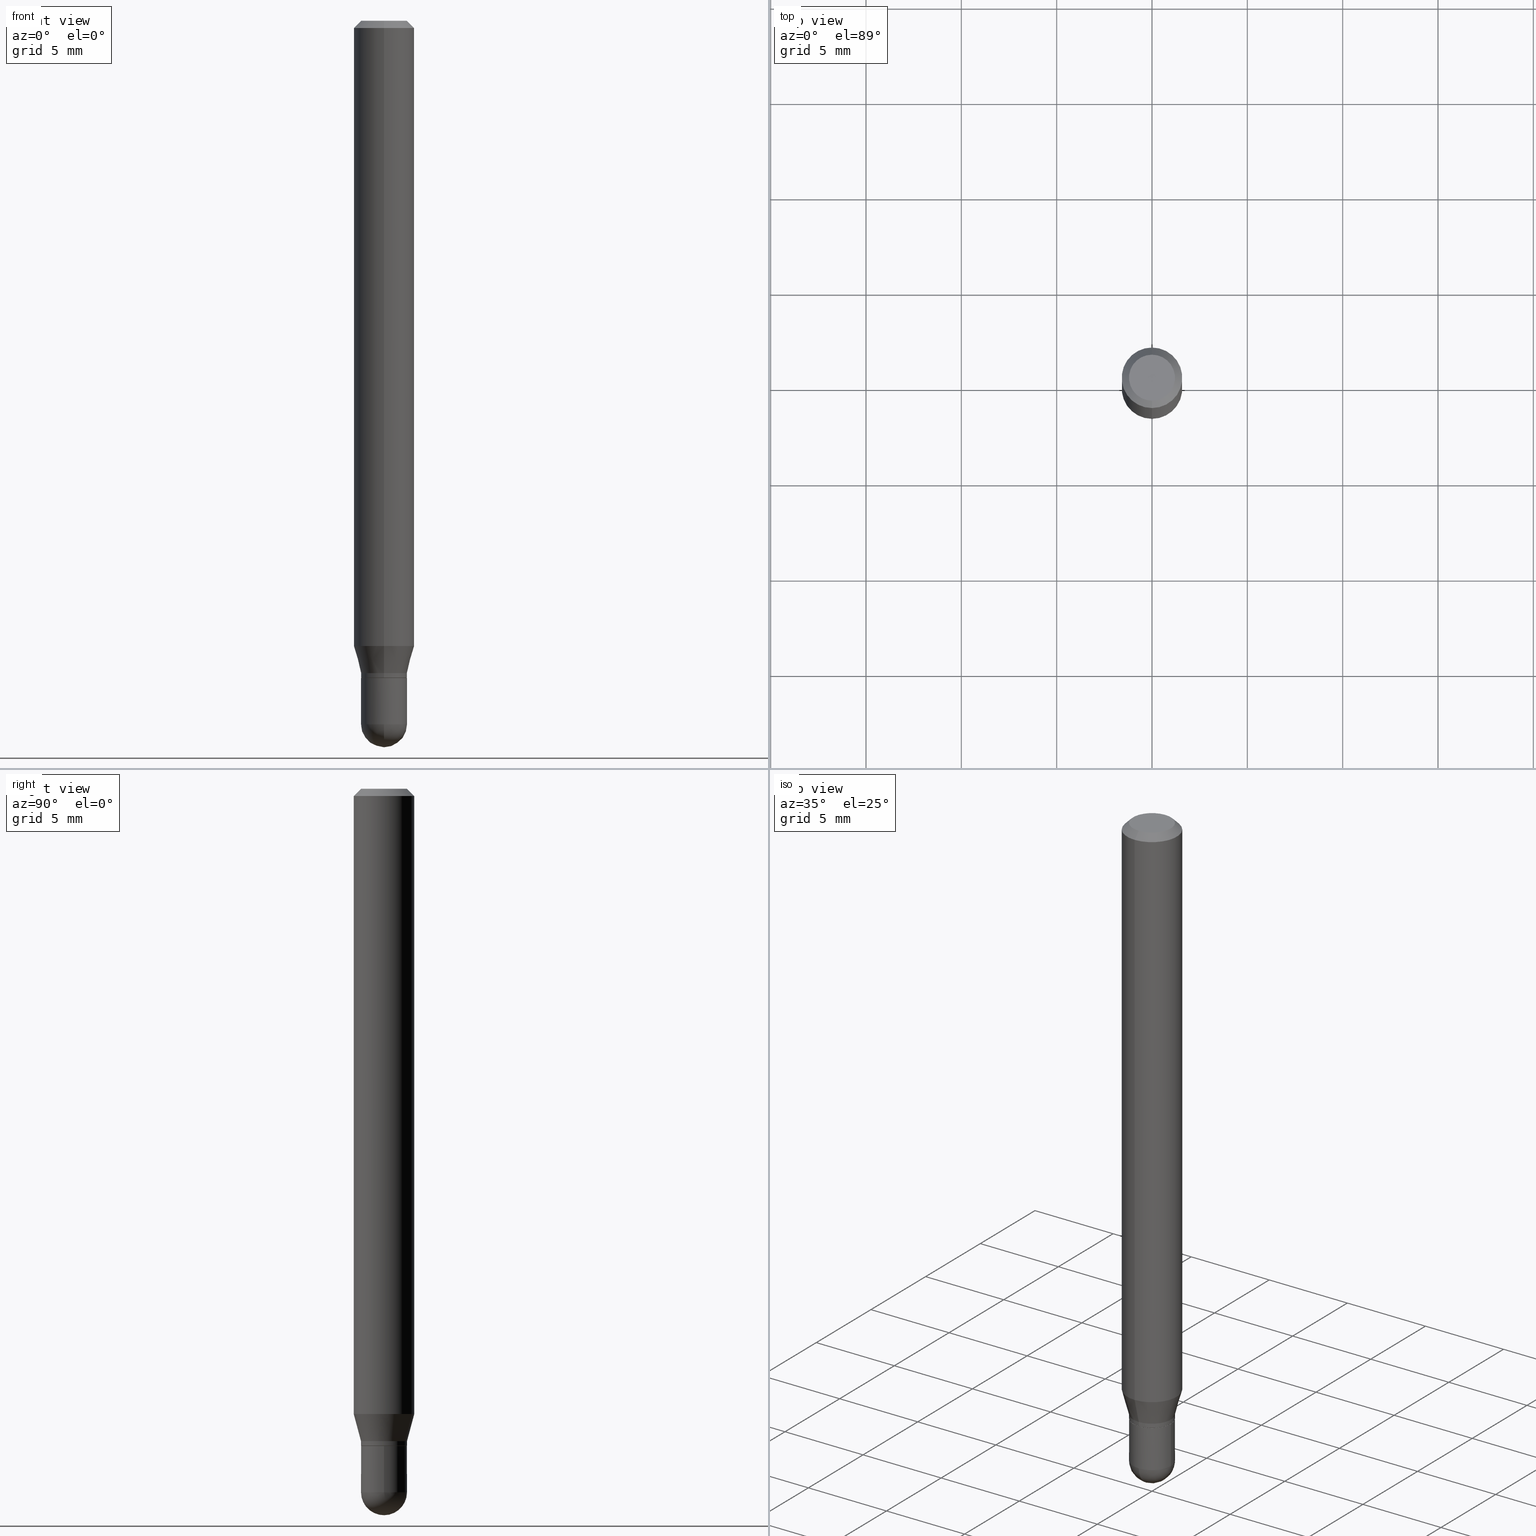
[diagram: canonical four-view strip — front | top / right | iso, engineering-drawing reading convention]
A machine part, canonical four-view strip (front | top / right | iso — engineering-drawing reading convention). The complete STEP part file that produces these views, byte-faithful:
ISO-10303-21;
HEADER;
FILE_DESCRIPTION (( 'STEP AP203' ),
    '1' );
FILE_NAME ('02566.STEP',
    '2024-03-07T20:28:25',
    ( '' ),
    ( '' ),
    'SwSTEP 2.0',
    'SolidWorks 2023',
    '' );
FILE_SCHEMA (( 'CONFIG_CONTROL_DESIGN' ));
ENDSEC;

DATA;
#1 = ORIENTED_EDGE ( 'NONE', *, *, #66, .T. ) ;
#2 = CYLINDRICAL_SURFACE ( 'NONE', #247, 0.06250000000000000000 ) ;
#3 = ORIENTED_EDGE ( 'NONE', *, *, #51, .F. ) ;
#4 = ADVANCED_FACE ( 'NONE', ( #413 ), #451, .T. ) ;
#5 = LOCAL_TIME ( 15, 28, 25.00000000000000000, #123 ) ;
#6 = EDGE_LOOP ( 'NONE', ( #399, #208, #403, #449, #173 ) ) ;
#7 = ORIENTED_EDGE ( 'NONE', *, *, #184, .T. ) ;
#8 = ORIENTED_EDGE ( 'NONE', *, *, #219, .F. ) ;
#9 = VERTEX_POINT ( 'NONE', #294 ) ;
#10 = EDGE_CURVE ( 'NONE', #50, #482, #465, .T. ) ;
#11 = FACE_OUTER_BOUND ( 'NONE', #364, .T. ) ;
#12 = DESIGN_CONTEXT ( 'detailed design', #38, 'design' ) ;
#13 = ORIENTED_EDGE ( 'NONE', *, *, #66, .F. ) ;
#14 = ORIENTED_EDGE ( 'NONE', *, *, #58, .F. ) ;
#15 = VECTOR ( 'NONE', #73, 39.37007874015748854 ) ;
#16 = CARTESIAN_POINT ( 'NONE',  ( 3.552043440983912297E-29, -5.071376644669670605E-15, -1.452500000000000346 ) ) ;
#17 = CARTESIAN_POINT ( 'NONE',  ( -4.364351673553598192E-16, -0.06250000000000446865, -1.291019237886467108 ) ) ;
#18 = FACE_OUTER_BOUND ( 'NONE', #49, .T. ) ;
#19 = CARTESIAN_POINT ( 'NONE',  ( -4.364351673553912750E-16, -0.06250000000000005551, -0.01500000000000011047 ) ) ;
#20 = VECTOR ( 'NONE', #124, 39.37007874015748143 ) ;
#21 = CARTESIAN_POINT ( 'NONE',  ( 3.294078296903620621E-29, -4.702979802570672656E-15, -1.347000000000000419 ) ) ;
#22 = CARTESIAN_POINT ( 'NONE',  ( -3.773273898774340269E-16, -0.04749999999999999362, -1.623047973916829079E-16 ) ) ;
#23 = CYLINDRICAL_SURFACE ( 'NONE', #145, 0.06250000000000000000 ) ;
#24 = DIRECTION ( 'NONE',  ( -2.445492425318203603E-29, 3.491447514900276167E-15, 1.000000000000000000 ) ) ;
#25 = PERSON_AND_ORGANIZATION ( #285, #100 ) ;
#26 = ADVANCED_FACE ( 'NONE', ( #59 ), #56, .T. ) ;
#27 = CYLINDRICAL_SURFACE ( 'NONE', #474, 0.04750000000000000749 ) ;
#28 = DIRECTION ( 'NONE',  ( -2.445492425318203603E-29, 3.491447514900276167E-15, 1.000000000000000000 ) ) ;
#29 = AXIS2_PLACEMENT_3D ( 'NONE', #322, #354, #164 ) ;
#30 = CARTESIAN_POINT ( 'NONE',  ( 0.04750000000000000749, -5.236349137930007031E-15, -1.452500000000000346 ) ) ;
#31 = APPROVAL_PERSON_ORGANIZATION ( #441, #177, #126 ) ;
#32 = APPROVAL_STATUS ( 'not_yet_approved' ) ;
#33 = ADVANCED_FACE ( 'NONE', ( #147 ), #366, .T. ) ;
#34 = PERSON_AND_ORGANIZATION ( #285, #100 ) ;
#35 = DIRECTION ( 'NONE',  ( 1.000000000000000000, -6.982962677686265922E-15, 4.883557194083112901E-29 ) ) ;
#36 = AXIS2_PLACEMENT_3D ( 'NONE', #385, #303, #103 ) ;
#37 = CC_DESIGN_APPROVAL ( #415, ( #300 ) ) ;
#38 = APPLICATION_CONTEXT ( 'configuration controlled 3d designs of mechanical parts and assemblies' ) ;
#39 = DIRECTION ( 'NONE',  ( -6.982962677686265922E-15, -1.000000000000000000, 3.491447514900276167E-15 ) ) ;
#40 = ORIENTED_EDGE ( 'NONE', *, *, #432, .T. ) ;
#41 = ADVANCED_BREP_SHAPE_REPRESENTATION ( '02566', ( #122, #118, #200 ), #183 ) ;
#42 = EDGE_CURVE ( 'NONE', #47, #335, #152, .T. ) ;
#43 = ORIENTED_EDGE ( 'NONE', *, *, #481, .T. ) ;
#44 = DIRECTION ( 'NONE',  ( 1.000000000000000000, -6.982962677686261977E-15, 0.000000000000000000 ) ) ;
#45 = ORIENTED_EDGE ( 'NONE', *, *, #402, .T. ) ;
#46 = AXIS2_PLACEMENT_3D ( 'NONE', #115, #194, #39 ) ;
#47 = VERTEX_POINT ( 'NONE', #17 ) ;
#48 = DIRECTION ( 'NONE',  ( 1.000000000000000000, -7.105427357601001070E-15, 4.926315508542082329E-29 ) ) ;
#49 = EDGE_LOOP ( 'NONE', ( #241, #45, #365, #295 ) ) ;
#50 = VERTEX_POINT ( 'NONE', #22 ) ;
#51 = EDGE_CURVE ( 'NONE', #134, #324, #509, .T. ) ;
#52 = ORIENTED_EDGE ( 'NONE', *, *, #51, .T. ) ;
#53 = ORIENTED_EDGE ( 'NONE', *, *, #347, .F. ) ;
#54 = AXIS2_PLACEMENT_3D ( 'NONE', #16, #496, #339 ) ;
#55 = DIRECTION ( 'NONE',  ( -2.445492425318203603E-29, 3.491447514900276167E-15, 1.000000000000000000 ) ) ;
#56 = CYLINDRICAL_SURFACE ( 'NONE', #144, 0.04749999999999991729 ) ;
#57 = DIRECTION ( 'NONE',  ( -6.982962677686265922E-15, -1.000000000000000000, 3.483106191921935554E-15 ) ) ;
#58 = EDGE_CURVE ( 'NONE', #324, #335, #384, .T. ) ;
#59 = FACE_OUTER_BOUND ( 'NONE', #483, .T. ) ;
#60 = DIRECTION ( 'NONE',  ( -2.445492425318203883E-29, 3.491447514900276167E-15, 1.000000000000000000 ) ) ;
#61 = LINE ( 'NONE', #221, #89 ) ;
#62 = AXIS2_PLACEMENT_3D ( 'NONE', #310, #186, #149 ) ;
#63 = AXIS2_PLACEMENT_3D ( 'NONE', #418, #492, #351 ) ;
#64 = LINE ( 'NONE', #105, #312 ) ;
#65 = CARTESIAN_POINT ( 'NONE',  ( 3.668238637977385892E-31, -5.237171272350528635E-17, -0.01500000000000032904 ) ) ;
#66 = EDGE_CURVE ( 'NONE', #335, #47, #298, .T. ) ;
#67 = DIRECTION ( 'NONE',  ( 6.982962677686265922E-15, 1.000000000000000000, -3.483106191921935554E-15 ) ) ;
#68 = DIRECTION ( 'NONE',  ( -6.982962677686265922E-15, -1.000000000000000000, 5.751258934030037627E-15 ) ) ;
#69 = DIRECTION ( 'NONE',  ( 0.000000000000000000, 0.000000000000000000, 1.000000000000000000 ) ) ;
#70 = CARTESIAN_POINT ( 'NONE',  ( -3.316907271900641323E-16, -0.04750000000000462186, -1.347000000000000197 ) ) ;
#71 = CONICAL_SURFACE ( 'NONE', #231, 0.06250000000000000000, 0.7853981633974483900 ) ;
#72 = AXIS2_PLACEMENT_3D ( 'NONE', #466, #269, #57 ) ;
#73 = DIRECTION ( 'NONE',  ( -1.807323732225333689E-15, -0.2588190451025186856, 0.9659258262890687563 ) ) ;
#74 = EDGE_CURVE ( 'NONE', #335, #243, #388, .T. ) ;
#75 = DATE_TIME_ROLE ( 'classification_date' ) ;
#76 = DIRECTION ( 'NONE',  ( -2.445492425318203883E-29, 3.491447514900276167E-15, 1.000000000000000000 ) ) ;
#77 = CALENDAR_DATE ( 2024, 7, 3 ) ;
#78 = PERSON_AND_ORGANIZATION ( #285, #100 ) ;
#79 = LINE ( 'NONE', #70, #15 ) ;
#80 = DIRECTION ( 'NONE',  ( -6.982962677686266711E-15, -1.000000000000000000, 5.812442539711199378E-15 ) ) ;
#81 = ORIENTED_EDGE ( 'NONE', *, *, #207, .T. ) ;
#82 = EDGE_CURVE ( 'NONE', #92, #9, #256, .T. ) ;
#83 = CARTESIAN_POINT ( 'NONE',  ( 0.000000000000000000, 0.000000000000000000, 0.000000000000000000 ) ) ;
#84 = ORIENTED_EDGE ( 'NONE', *, *, #432, .F. ) ;
#85 = FACE_OUTER_BOUND ( 'NONE', #204, .T. ) ;
#86 = ORIENTED_EDGE ( 'NONE', *, *, #58, .T. ) ;
#87 = ORIENTED_EDGE ( 'NONE', *, *, #362, .F. ) ;
#88 = ADVANCED_FACE ( 'NONE', ( #379 ), #71, .T. ) ;
#89 = VECTOR ( 'NONE', #499, 39.37007874015748143 ) ;
#90 = ORIENTED_EDGE ( 'NONE', *, *, #42, .F. ) ;
#91 = CIRCLE ( 'NONE', #291, 0.04750000000000000749 ) ;
#92 = VERTEX_POINT ( 'NONE', #419 ) ;
#93 = CARTESIAN_POINT ( 'NONE',  ( 3.357314426466801272E-16, 0.04699999999999526085, -1.357000000000000206 ) ) ;
#94 = EDGE_LOOP ( 'NONE', ( #14, #43, #40, #13 ) ) ;
#95 = DIRECTION ( 'NONE',  ( 1.000000000000000000, -6.982962677686265922E-15, 4.883557194083112901E-29 ) ) ;
#96 = ORIENTED_EDGE ( 'NONE', *, *, #476, .T. ) ;
#97 = DIRECTION ( 'NONE',  ( 1.000000000000000000, -6.982962677686260400E-15, 0.000000000000000000 ) ) ;
#98 = ORIENTED_EDGE ( 'NONE', *, *, #459, .F. ) ;
#99 = CLOSED_SHELL ( 'NONE', ( #440, #33, #355, #325, #229, #128, #195, #88, #102, #133, #212, #26 ) ) ;
#100 = ORGANIZATION ( 'UNSPECIFIED', 'UNSPECIFIED', '' ) ;
#101 = CC_DESIGN_SECURITY_CLASSIFICATION ( #488, ( #300 ) ) ;
#102 = ADVANCED_FACE ( 'NONE', ( #346 ), #421, .F. ) ;
#103 = DIRECTION ( 'NONE',  ( -6.982962677686265922E-15, -1.000000000000000000, 0.000000000000000000 ) ) ;
#104 = DIRECTION ( 'NONE',  ( -2.445492425318203883E-29, 3.491447514900276167E-15, 1.000000000000000000 ) ) ;
#105 = CARTESIAN_POINT ( 'NONE',  ( -3.281992458512213224E-16, -0.04700000000000473244, -1.356999999999999762 ) ) ;
#106 = CARTESIAN_POINT ( 'NONE',  ( 0.000000000000000000, 0.000000000000000000, 0.000000000000000000 ) ) ;
#107 = DIRECTION ( 'NONE',  ( 1.000000000000000000, -6.982962677686261977E-15, 0.000000000000000000 ) ) ;
#108 = EDGE_CURVE ( 'NONE', #130, #243, #442, .T. ) ;
#109 = AXIS2_PLACEMENT_3D ( 'NONE', #479, #48, #168 ) ;
#110 = CONICAL_SURFACE ( 'NONE', #376, 0.06250000000000000000, 0.7853981633974483900 ) ;
#111 = APPROVAL_ROLE ( '' ) ;
#112 = FACE_OUTER_BOUND ( 'NONE', #6, .T. ) ;
#113 = CARTESIAN_POINT ( 'NONE',  ( 3.157177767191435444E-29, -4.507525909807155110E-15, -1.291019237886467330 ) ) ;
#114 = APPROVAL_DATE_TIME ( #506, #415 ) ;
#115 = CARTESIAN_POINT ( 'NONE',  ( 0.000000000000000000, 0.000000000000000000, 0.000000000000000000 ) ) ;
#116 = DIRECTION ( 'NONE',  ( -6.982962677686265922E-15, -1.000000000000000000, 3.491447514900276167E-15 ) ) ;
#117 = LENGTH_MEASURE_WITH_UNIT ( LENGTH_MEASURE( 0.02539999999999999897 ), #125 );
#118 = MANIFOLD_SOLID_BREP ( 'Body-Move/Copy2[2]', #99 ) ;
#119 = PERSON_AND_ORGANIZATION ( #285, #100 ) ;
#120 = CIRCLE ( 'NONE', #405, 0.04749999999999999362 ) ;
#121 = LINE ( 'NONE', #439, #343 ) ;
#122 = MANIFOLD_SOLID_BREP ( 'Body-Move/Copy2[1]', #390 ) ;
#123 = COORDINATED_UNIVERSAL_TIME_OFFSET ( 5, 0, .BEHIND. ) ;
#124 = DIRECTION ( 'NONE',  ( -4.851104656540964275E-15, -0.7071067811865500152, -0.7071067811865450192 ) ) ;
#125 =( LENGTH_UNIT ( ) NAMED_UNIT ( * ) SI_UNIT ( $, .METRE. ) );
#126 = APPROVAL_ROLE ( '' ) ;
#127 = ORIENTED_EDGE ( 'NONE', *, *, #165, .F. ) ;
#128 = ADVANCED_FACE ( 'NONE', ( #304 ), #341, .T. ) ;
#129 = AXIS2_PLACEMENT_3D ( 'NONE', #275, #273, #80 ) ;
#130 = VERTEX_POINT ( 'NONE', #19 ) ;
#131 = CARTESIAN_POINT ( 'NONE',  ( 4.364351673553919652E-16, 0.06249999999999995143, -0.01500000000000054588 ) ) ;
#132 = ORIENTED_EDGE ( 'NONE', *, *, #470, .F. ) ;
#133 = ADVANCED_FACE ( 'NONE', ( #181 ), #344, .F. ) ;
#134 = VERTEX_POINT ( 'NONE', #274 ) ;
#135 = VERTEX_POINT ( 'NONE', #497 ) ;
#136 = EDGE_LOOP ( 'NONE', ( #332, #245, #288, #246 ) ) ;
#137 = CIRCLE ( 'NONE', #425, 0.04750000000000000749 ) ;
#138 = CARTESIAN_POINT ( 'NONE',  ( 3.547981401110308940E-29, -5.077193716965619798E-15, -1.452500000000000124 ) ) ;
#139 = DIRECTION ( 'NONE',  ( -2.445492425318203603E-29, 3.491447514900276167E-15, 1.000000000000000000 ) ) ;
#140 = ORIENTED_EDGE ( 'NONE', *, *, #42, .T. ) ;
#141 = EDGE_CURVE ( 'NONE', #9, #134, #61, .T. ) ;
#142 = CYLINDRICAL_SURFACE ( 'NONE', #397, 0.04750000000000000749 ) ;
#143 = DIRECTION ( 'NONE',  ( -2.445492425318203603E-29, 3.491447514900276167E-15, 1.000000000000000000 ) ) ;
#144 = AXIS2_PLACEMENT_3D ( 'NONE', #106, #349, #386 ) ;
#145 = AXIS2_PLACEMENT_3D ( 'NONE', #150, #215, #462 ) ;
#146 = CARTESIAN_POINT ( 'NONE',  ( 3.552043440983912297E-29, -5.071376644669670605E-15, -1.452500000000000346 ) ) ;
#147 = FACE_OUTER_BOUND ( 'NONE', #136, .T. ) ;
#148 = CARTESIAN_POINT ( 'NONE',  ( 0.000000000000000000, 0.000000000000000000, 0.000000000000000000 ) ) ;
#149 = DIRECTION ( 'NONE',  ( -6.982962677686265922E-15, -1.000000000000000000, 5.751258934030037627E-15 ) ) ;
#150 = CARTESIAN_POINT ( 'NONE',  ( 0.000000000000000000, 0.000000000000000000, 0.000000000000000000 ) ) ;
#151 = DIRECTION ( 'NONE',  ( -6.982962677686265922E-15, -1.000000000000000000, 4.370956789862821150E-15 ) ) ;
#152 = CIRCLE ( 'NONE', #238, 0.06250000000000000000 ) ;
#153 = DATE_TIME_ROLE ( 'creation_date' ) ;
#154 = CARTESIAN_POINT ( 'NONE',  ( -4.364351673553916201E-16, -0.06250000000000000000, 2.182154696812672604E-16 ) ) ;
#155 = CARTESIAN_POINT ( 'NONE',  ( 3.318533221156802461E-29, -4.737894277719674668E-15, -1.356999999999999984 ) ) ;
#156 = APPLICATION_PROTOCOL_DEFINITION ( 'international standard', 'config_control_design', 1994, #38 ) ;
#157 = DIRECTION ( 'NONE',  ( -6.982962677686265922E-15, -1.000000000000000000, 5.751258934030012383E-15 ) ) ;
#158 = CC_DESIGN_DATE_AND_TIME_ASSIGNMENT ( #396, #75, ( #488 ) ) ;
#159 = PERSON_AND_ORGANIZATION_ROLE ( 'design_supplier' ) ;
#160 = VERTEX_POINT ( 'NONE', #306 ) ;
#161 = PERSON_AND_ORGANIZATION_ROLE ( 'creator' ) ;
#162 = CONICAL_SURFACE ( 'NONE', #267, 0.04699999999999999317, 0.7853981633974739252 ) ;
#163 = CARTESIAN_POINT ( 'NONE',  ( -3.316907271900626039E-16, -0.04750000000000514228, -1.452500000000000124 ) ) ;
#164 = DIRECTION ( 'NONE',  ( -6.982962677686265922E-15, -1.000000000000000000, 5.751258934030037627E-15 ) ) ;
#165 = EDGE_CURVE ( 'NONE', #188, #92, #265, .T. ) ;
#166 = COORDINATED_UNIVERSAL_TIME_OFFSET ( 5, 0, .BEHIND. ) ;
#167 = LOCAL_TIME ( 15, 28, 25.00000000000000000, #319 ) ;
#168 = DIRECTION ( 'NONE',  ( 7.105427357601001070E-15, 1.000000000000000000, 0.000000000000000000 ) ) ;
#169 = VERTEX_POINT ( 'NONE', #163 ) ;
#170 = ORIENTED_EDGE ( 'NONE', *, *, #476, .F. ) ;
#171 = CC_DESIGN_PERSON_AND_ORGANIZATION_ASSIGNMENT ( #119, #277, ( #488 ) ) ;
#172 = DIMENSIONAL_EXPONENTS ( 1.000000000000000000, 0.000000000000000000, 0.000000000000000000, 0.000000000000000000, 0.000000000000000000, 0.000000000000000000, 0.000000000000000000 ) ;
#173 = ORIENTED_EDGE ( 'NONE', *, *, #184, .F. ) ;
#174 = ORIENTED_EDGE ( 'NONE', *, *, #141, .T. ) ;
#175 = EDGE_LOOP ( 'NONE', ( #52, #86, #90, #84 ) ) ;
#176 = EDGE_LOOP ( 'NONE', ( #363, #330, #206, #98, #443 ) ) ;
#177 = APPROVAL ( #437, 'UNSPECIFIED' ) ;
#178 = FACE_OUTER_BOUND ( 'NONE', #176, .T. ) ;
#179 = DIRECTION ( 'NONE',  ( 2.445492425318203603E-29, -3.491447514900276167E-15, -1.000000000000000000 ) ) ;
#180 = DIRECTION ( 'NONE',  ( -6.982962677686265922E-15, -1.000000000000000000, 5.751258934030037627E-15 ) ) ;
#181 = FACE_OUTER_BOUND ( 'NONE', #401, .T. ) ;
#182 = CIRCLE ( 'NONE', #109, 0.04750000000000012546 ) ;
#183 =( GEOMETRIC_REPRESENTATION_CONTEXT ( 3 ) GLOBAL_UNCERTAINTY_ASSIGNED_CONTEXT ( ( #254 ) ) GLOBAL_UNIT_ASSIGNED_CONTEXT ( ( #281, #201, #359 ) ) REPRESENTATION_CONTEXT ( 'NONE', 'WORKASPACE' ) );
#184 = EDGE_CURVE ( 'NONE', #135, #297, #120, .T. ) ;
#185 = DIRECTION ( 'NONE',  ( -2.445468806185136877E-29, 3.491481338843145188E-15, 1.000000000000000000 ) ) ;
#186 = DIRECTION ( 'NONE',  ( -2.445492425318203603E-29, 3.491447514900276167E-15, 1.000000000000000000 ) ) ;
#187 = CARTESIAN_POINT ( 'NONE',  ( 4.440892098500942692E-16, 0.06249999999999551747, -1.291019237886467552 ) ) ;
#188 = VERTEX_POINT ( 'NONE', #93 ) ;
#189 = DIRECTION ( 'NONE',  ( 5.024295867788190974E-15, 0.7071067811865681119, 0.7071067811865270336 ) ) ;
#190 = APPROVAL_ROLE ( '' ) ;
#191 = LINE ( 'NONE', #260, #239 ) ;
#192 = DIRECTION ( 'NONE',  ( 6.982962677686265922E-15, 1.000000000000000000, -3.483106191921935554E-15 ) ) ;
#193 = CIRCLE ( 'NONE', #361, 0.04749999999999999362 ) ;
#194 = DIRECTION ( 'NONE',  ( -2.445492425318203603E-29, 3.491447514900276167E-15, 1.000000000000000000 ) ) ;
#195 = ADVANCED_FACE ( 'NONE', ( #11 ), #2, .T. ) ;
#196 = CALENDAR_DATE ( 2024, 7, 3 ) ;
#197 = ORIENTED_EDGE ( 'NONE', *, *, #320, .F. ) ;
#198 = CARTESIAN_POINT ( 'NONE',  ( -0.04750000000000000749, -4.567150611253862815E-15, -1.452500000000000346 ) ) ;
#199 = EDGE_CURVE ( 'NONE', #160, #455, #182, .T. ) ;
#200 = AXIS2_PLACEMENT_3D ( 'NONE', #317, #69, #226 ) ;
#201 =( NAMED_UNIT ( * ) PLANE_ANGLE_UNIT ( ) SI_UNIT ( $, .RADIAN. ) );
#202 = APPROVAL_PERSON_ORGANIZATION ( #471, #415, #190 ) ;
#203 = ORIENTED_EDGE ( 'NONE', *, *, #279, .F. ) ;
#204 = EDGE_LOOP ( 'NONE', ( #127, #338, #448, #255 ) ) ;
#205 = DATE_AND_TIME ( #77, #223 ) ;
#206 = ORIENTED_EDGE ( 'NONE', *, *, #235, .F. ) ;
#207 = EDGE_CURVE ( 'NONE', #482, #243, #329, .T. ) ;
#208 = ORIENTED_EDGE ( 'NONE', *, *, #362, .T. ) ;
#209 = ORIENTED_EDGE ( 'NONE', *, *, #378, .T. ) ;
#210 = VERTEX_POINT ( 'NONE', #446 ) ;
#211 = ORIENTED_EDGE ( 'NONE', *, *, #279, .T. ) ;
#212 = ADVANCED_FACE ( 'NONE', ( #85 ), #162, .T. ) ;
#213 = VECTOR ( 'NONE', #60, 39.37007874015748143 ) ;
#214 = CC_DESIGN_APPROVAL ( #177, ( #488 ) ) ;
#215 = DIRECTION ( 'NONE',  ( -2.445492425318203603E-29, 3.491447514900276167E-15, 1.000000000000000000 ) ) ;
#216 = DIRECTION ( 'NONE',  ( -6.982962677686265922E-15, -1.000000000000000000, 4.370956789862821150E-15 ) ) ;
#217 = CARTESIAN_POINT ( 'NONE',  ( 3.318501169993230375E-29, -4.737940176810148435E-15, -1.356999999999999984 ) ) ;
#218 = DIRECTION ( 'NONE',  ( -2.445492425318203603E-29, 3.491447514900276167E-15, 1.000000000000000000 ) ) ;
#219 = EDGE_CURVE ( 'NONE', #210, #188, #478, .T. ) ;
#220 = LINE ( 'NONE', #154, #283 ) ;
#221 = CARTESIAN_POINT ( 'NONE',  ( -3.316907271900970672E-16, -0.04749999999999991729, 1.658437569577628369E-16 ) ) ;
#222 = CIRCLE ( 'NONE', #54, 0.04750000000000000749 ) ;
#223 = LOCAL_TIME ( 15, 28, 25.00000000000000000, #166 ) ;
#224 = DIRECTION ( 'NONE',  ( -2.445468806185136597E-29, 3.491481338843145583E-15, 1.000000000000000000 ) ) ;
#225 = CARTESIAN_POINT ( 'NONE',  ( 3.339550858072801710E-16, 0.04699999999999526085, -1.357000000000000206 ) ) ;
#226 = DIRECTION ( 'NONE',  ( 1.000000000000000000, 0.000000000000000000, 0.000000000000000000 ) ) ;
#227 = CARTESIAN_POINT ( 'NONE',  ( 4.440892098500943678E-16, 0.06249999999999995837, -0.01500000000000054588 ) ) ;
#228 = DIRECTION ( 'NONE',  ( 2.445492425318203323E-29, -3.491447514900276167E-15, -1.000000000000000000 ) ) ;
#229 = ADVANCED_FACE ( 'NONE', ( #498 ), #353, .T. ) ;
#230 = CARTESIAN_POINT ( 'NONE',  ( 3.552043440983912297E-29, -5.071376644669670605E-15, -1.452500000000000346 ) ) ;
#231 = AXIS2_PLACEMENT_3D ( 'NONE', #426, #179, #192 ) ;
#232 = CC_DESIGN_APPROVAL ( #271, ( #340 ) ) ;
#233 = DIRECTION ( 'NONE',  ( -2.445468806185136877E-29, 3.491481338843145188E-15, 1.000000000000000000 ) ) ;
#234 = LINE ( 'NONE', #472, #20 ) ;
#235 = EDGE_CURVE ( 'NONE', #297, #135, #406, .T. ) ;
#236 = CALENDAR_DATE ( 2024, 7, 3 ) ;
#237 = SPHERICAL_SURFACE ( 'NONE', #327, 0.04750000000000012546 ) ;
#238 = AXIS2_PLACEMENT_3D ( 'NONE', #113, #143, #216 ) ;
#239 = VECTOR ( 'NONE', #185, 39.37007874015748143 ) ;
#240 = FACE_OUTER_BOUND ( 'NONE', #293, .T. ) ;
#241 = ORIENTED_EDGE ( 'NONE', *, *, #10, .F. ) ;
#242 = DIRECTION ( 'NONE',  ( -6.982962677686265922E-15, -1.000000000000000000, 3.491447514900276167E-15 ) ) ;
#243 = VERTEX_POINT ( 'NONE', #227 ) ;
#244 = CC_DESIGN_PERSON_AND_ORGANIZATION_ASSIGNMENT ( #268, #161, ( #300 ) ) ;
#245 = ORIENTED_EDGE ( 'NONE', *, *, #165, .T. ) ;
#246 = ORIENTED_EDGE ( 'NONE', *, *, #253, .F. ) ;
#247 = AXIS2_PLACEMENT_3D ( 'NONE', #83, #407, #242 ) ;
#248 = AXIS2_PLACEMENT_3D ( 'NONE', #264, #387, #257 ) ;
#249 = ORIENTED_EDGE ( 'NONE', *, *, #199, .T. ) ;
#250 = EDGE_LOOP ( 'NONE', ( #284, #7 ) ) ;
#251 = ORIENTED_EDGE ( 'NONE', *, *, #347, .T. ) ;
#252 = EDGE_LOOP ( 'NONE', ( #491, #209, #3, #373 ) ) ;
#253 = EDGE_CURVE ( 'NONE', #210, #9, #64, .T. ) ;
#254 = UNCERTAINTY_MEASURE_WITH_UNIT (LENGTH_MEASURE( 1.000000000000000082E-05 ), #281, 'distance_accuracy_value', 'NONE');
#255 = ORIENTED_EDGE ( 'NONE', *, *, #82, .F. ) ;
#256 = CIRCLE ( 'NONE', #360, 0.04749999999999991729 ) ;
#257 = DIRECTION ( 'NONE',  ( -6.982962677686266711E-15, -1.000000000000000000, 5.812442539711199378E-15 ) ) ;
#258 = CIRCLE ( 'NONE', #29, 0.04749999999999991729 ) ;
#259 = ADVANCED_FACE ( 'NONE', ( #112 ), #27, .T. ) ;
#260 = CARTESIAN_POINT ( 'NONE',  ( -0.04750000000000000749, 3.375077994860476415E-16, -2.336494167871080260E-30 ) ) ;
#261 = CARTESIAN_POINT ( 'NONE',  ( 3.375077994860798862E-16, 0.04749999999999521966, -1.347000000000000641 ) ) ;
#262 = DIRECTION ( 'NONE',  ( 2.445492425318203603E-29, -3.491447514900276167E-15, -1.000000000000000000 ) ) ;
#263 = DIRECTION ( 'NONE',  ( -6.982962677686265922E-15, -1.000000000000000000, 5.751258934030037627E-15 ) ) ;
#264 = CARTESIAN_POINT ( 'NONE',  ( 3.318533221156802461E-29, -4.737894277719674668E-15, -1.356999999999999984 ) ) ;
#265 = LINE ( 'NONE', #225, #266 ) ;
#266 = VECTOR ( 'NONE', #189, 39.37007874015748143 ) ;
#267 = AXIS2_PLACEMENT_3D ( 'NONE', #292, #410, #305 ) ;
#268 = PERSON_AND_ORGANIZATION ( #285, #100 ) ;
#269 = DIRECTION ( 'NONE',  ( -2.445492425318203603E-29, 3.491447514900276167E-15, 1.000000000000000000 ) ) ;
#270 = DIRECTION ( 'NONE',  ( 1.839019923739603865E-15, 0.2588190451025254579, 0.9659258262890669799 ) ) ;
#271 = APPROVAL ( #32, 'UNSPECIFIED' ) ;
#272 = SECURITY_CLASSIFICATION_LEVEL ( 'unclassified' ) ;
#273 = DIRECTION ( 'NONE',  ( -2.445492425318203603E-29, 3.491447514900276167E-15, 1.000000000000000000 ) ) ;
#274 = CARTESIAN_POINT ( 'NONE',  ( -3.316907271900641323E-16, -0.04750000000000462186, -1.347000000000000197 ) ) ;
#275 = CARTESIAN_POINT ( 'NONE',  ( 3.318533221156802461E-29, -4.737894277719674668E-15, -1.356999999999999984 ) ) ;
#276 = LOCAL_TIME ( 15, 28, 25.00000000000000000, #350 ) ;
#277 = PERSON_AND_ORGANIZATION_ROLE ( 'classification_officer' ) ;
#278 = DIRECTION ( 'NONE',  ( -2.445492425318203603E-29, 3.491447514900276167E-15, 1.000000000000000000 ) ) ;
#279 = EDGE_CURVE ( 'NONE', #160, #169, #487, .T. ) ;
#280 = CARTESIAN_POINT ( 'NONE',  ( 3.375077994860835347E-16, 0.04749999999999498373, -1.452500000000000790 ) ) ;
#281 =( CONVERSION_BASED_UNIT ( 'INCH', #117 ) LENGTH_UNIT ( ) NAMED_UNIT ( #172 ) );
#282 = ORIENTED_EDGE ( 'NONE', *, *, #402, .F. ) ;
#283 = VECTOR ( 'NONE', #76, 39.37007874015748143 ) ;
#284 = ORIENTED_EDGE ( 'NONE', *, *, #235, .T. ) ;
#285 = PERSON ( 'UNSPECIFIED', 'UNSPECIFIED', 'UNSPECIFIED', ('UNSPECIFIED'), ('UNSPECIFIED'), ('UNSPECIFIED') ) ;
#286 = EDGE_CURVE ( 'NONE', #484, #135, #191, .T. ) ;
#287 = DIRECTION ( 'NONE',  ( 4.937700262164548042E-15, 0.7071067811865451302, -0.7071067811865499042 ) ) ;
#288 = ORIENTED_EDGE ( 'NONE', *, *, #311, .F. ) ;
#289 = ORIENTED_EDGE ( 'NONE', *, *, #199, .F. ) ;
#290 = EDGE_LOOP ( 'NONE', ( #203, #249, #132, #334 ) ) ;
#291 = AXIS2_PLACEMENT_3D ( 'NONE', #146, #382, #97 ) ;
#292 = CARTESIAN_POINT ( 'NONE',  ( 3.318533221156802461E-29, -4.737894277719674668E-15, -1.356999999999999984 ) ) ;
#293 = EDGE_LOOP ( 'NONE', ( #289, #211, #87, #197 ) ) ;
#294 = CARTESIAN_POINT ( 'NONE',  ( -3.316907271900631462E-16, -0.04750000000000454553, -1.356499999999999817 ) ) ;
#295 = ORIENTED_EDGE ( 'NONE', *, *, #207, .F. ) ;
#296 = CARTESIAN_POINT ( 'NONE',  ( 3.317310474944143537E-29, -4.736148553962225593E-15, -1.356500000000000039 ) ) ;
#297 = VERTEX_POINT ( 'NONE', #380 ) ;
#298 = CIRCLE ( 'NONE', #477, 0.06250000000000000000 ) ;
#299 = DIRECTION ( 'NONE',  ( -2.445468806185136597E-29, 3.491481338843145583E-15, 1.000000000000000000 ) ) ;
#300 = PRODUCT_DEFINITION_FORMATION_WITH_SPECIFIED_SOURCE ( 'ANY', '', #326, .NOT_KNOWN. ) ;
#301 = DIRECTION ( 'NONE',  ( -6.982962677686266711E-15, -1.000000000000000000, 3.491447514900276561E-15 ) ) ;
#302 = ADVANCED_FACE ( 'NONE', ( #308 ), #348, .F. ) ;
#303 = DIRECTION ( 'NONE',  ( -1.000000000000000000, 6.982962677686265922E-15, -4.883557194083112340E-29 ) ) ;
#304 = FACE_OUTER_BOUND ( 'NONE', #94, .T. ) ;
#305 = DIRECTION ( 'NONE',  ( -6.982962677686266711E-15, -1.000000000000000000, 5.812442539711199378E-15 ) ) ;
#306 = CARTESIAN_POINT ( 'NONE',  ( 3.662110149467302662E-29, -5.245947616708644728E-15, -1.500000000000000444 ) ) ;
#307 = DATE_AND_TIME ( #427, #5 ) ;
#308 = FACE_OUTER_BOUND ( 'NONE', #250, .T. ) ;
#309 = AXIS2_PLACEMENT_3D ( 'NONE', #316, #228, #503 ) ;
#310 = CARTESIAN_POINT ( 'NONE',  ( 3.294078296903620621E-29, -4.702979802570672656E-15, -1.347000000000000419 ) ) ;
#311 = EDGE_CURVE ( 'NONE', #9, #92, #502, .T. ) ;
#312 = VECTOR ( 'NONE', #377, 39.37007874015748143 ) ;
#313 = AXIS2_PLACEMENT_3D ( 'NONE', #230, #512, #389 ) ;
#314 = CALENDAR_DATE ( 2024, 7, 3 ) ;
#315 = CARTESIAN_POINT ( 'NONE',  ( 3.552043440983912297E-29, -5.071376644669670605E-15, -1.452500000000000346 ) ) ;
#316 = CARTESIAN_POINT ( 'NONE',  ( 3.316907271900976096E-16, 0.04749999999999999362, -3.299180341324861161E-16 ) ) ;
#317 = CARTESIAN_POINT ( 'NONE',  ( 0.000000000000000000, 0.000000000000000000, 0.000000000000000000 ) ) ;
#318 = DIRECTION ( 'NONE',  ( -2.445468806185136597E-29, 3.491481338843145583E-15, 1.000000000000000000 ) ) ;
#319 = COORDINATED_UNIVERSAL_TIME_OFFSET ( 5, 0, .BEHIND. ) ;
#320 = EDGE_CURVE ( 'NONE', #455, #484, #91, .T. ) ;
#321 = AXIS2_PLACEMENT_3D ( 'NONE', #493, #24, #352 ) ;
#322 = CARTESIAN_POINT ( 'NONE',  ( 3.294078296903620621E-29, -4.702979802570672656E-15, -1.347000000000000419 ) ) ;
#323 = CYLINDRICAL_SURFACE ( 'NONE', #46, 0.04749999999999991729 ) ;
#324 = VERTEX_POINT ( 'NONE', #416 ) ;
#325 = ADVANCED_FACE ( 'NONE', ( #428 ), #23, .T. ) ;
#326 = PRODUCT ( '02566', '02566', '', ( #394 ) ) ;
#327 = AXIS2_PLACEMENT_3D ( 'NONE', #505, #35, #157 ) ;
#328 = LOCAL_TIME ( 15, 28, 25.00000000000000000, #435 ) ;
#329 = LINE ( 'NONE', #131, #510 ) ;
#330 = ORIENTED_EDGE ( 'NONE', *, *, #286, .T. ) ;
#331 = EDGE_LOOP ( 'NONE', ( #96, #409 ) ) ;
#332 = ORIENTED_EDGE ( 'NONE', *, *, #219, .T. ) ;
#333 = CC_DESIGN_PERSON_AND_ORGANIZATION_ASSIGNMENT ( #78, #159, ( #300 ) ) ;
#334 = ORIENTED_EDGE ( 'NONE', *, *, #494, .F. ) ;
#335 = VERTEX_POINT ( 'NONE', #187 ) ;
#336 = VECTOR ( 'NONE', #104, 39.37007874015748143 ) ;
#337 = ORIENTED_EDGE ( 'NONE', *, *, #108, .F. ) ;
#338 = ORIENTED_EDGE ( 'NONE', *, *, #398, .T. ) ;
#339 = DIRECTION ( 'NONE',  ( 1.000000000000000000, -6.982962677686260400E-15, 0.000000000000000000 ) ) ;
#340 = PRODUCT_DEFINITION ( 'UNKNOWN', '', #300, #12 ) ;
#341 = CONICAL_SURFACE ( 'NONE', #423, 0.04749999999999991729, 0.2617993877991508511 ) ;
#342 = DIRECTION ( 'NONE',  ( -2.445468806185136597E-29, 3.491481338843145583E-15, 1.000000000000000000 ) ) ;
#343 = VECTOR ( 'NONE', #233, 39.37007874015748143 ) ;
#344 = PLANE ( 'NONE',  #486 ) ;
#345 = CARTESIAN_POINT ( 'NONE',  ( 3.668238637977385892E-31, -5.237171272350528635E-17, -0.01500000000000032904 ) ) ;
#346 = FACE_OUTER_BOUND ( 'NONE', #331, .T. ) ;
#347 = EDGE_CURVE ( 'NONE', #243, #130, #444, .T. ) ;
#348 = PLANE ( 'NONE',  #63 ) ;
#349 = DIRECTION ( 'NONE',  ( -2.445492425318203603E-29, 3.491447514900276167E-15, 1.000000000000000000 ) ) ;
#350 = COORDINATED_UNIVERSAL_TIME_OFFSET ( 5, 0, .BEHIND. ) ;
#351 = DIRECTION ( 'NONE',  ( -1.000000000000000000, 6.982962677686265922E-15, -4.876176775795935793E-29 ) ) ;
#352 = DIRECTION ( 'NONE',  ( -6.982962677686266711E-15, -1.000000000000000000, 5.812442539711199378E-15 ) ) ;
#353 = CONICAL_SURFACE ( 'NONE', #367, 0.04749999999999991729, 0.2617993877991508511 ) ;
#354 = DIRECTION ( 'NONE',  ( -2.445492425318203603E-29, 3.491447514900276167E-15, 1.000000000000000000 ) ) ;
#355 = ADVANCED_FACE ( 'NONE', ( #18 ), #110, .T. ) ;
#356 = PERSON_AND_ORGANIZATION_ROLE ( 'creator' ) ;
#357 = CARTESIAN_POINT ( 'NONE',  ( 3.318501169993230375E-29, -4.737940176810148435E-15, -1.356999999999999984 ) ) ;
#358 = DATE_AND_TIME ( #196, #167 ) ;
#359 =( NAMED_UNIT ( * ) SI_UNIT ( $, .STERADIAN. ) SOLID_ANGLE_UNIT ( ) );
#360 = AXIS2_PLACEMENT_3D ( 'NONE', #501, #28, #68 ) ;
#361 = AXIS2_PLACEMENT_3D ( 'NONE', #431, #278, #436 ) ;
#362 = EDGE_CURVE ( 'NONE', #484, #169, #222, .T. ) ;
#363 = ORIENTED_EDGE ( 'NONE', *, *, #320, .T. ) ;
#364 = EDGE_LOOP ( 'NONE', ( #408, #1, #480, #53 ) ) ;
#365 = ORIENTED_EDGE ( 'NONE', *, *, #108, .T. ) ;
#366 = CONICAL_SURFACE ( 'NONE', #321, 0.04699999999999999317, 0.7853981633974739252 ) ;
#367 = AXIS2_PLACEMENT_3D ( 'NONE', #21, #139, #180 ) ;
#368 = ORIENTED_EDGE ( 'NONE', *, *, #82, .T. ) ;
#369 = ADVANCED_FACE ( 'NONE', ( #178 ), #142, .T. ) ;
#370 = ORIENTED_EDGE ( 'NONE', *, *, #481, .F. ) ;
#371 = EDGE_LOOP ( 'NONE', ( #282, #170, #81, #251 ) ) ;
#372 = APPLICATION_CONTEXT ( 'configuration controlled 3d designs of mechanical parts and assemblies' ) ;
#373 = ORIENTED_EDGE ( 'NONE', *, *, #141, .F. ) ;
#374 = DIRECTION ( 'NONE',  ( -2.445492425318203603E-29, 3.491447514900276167E-15, 1.000000000000000000 ) ) ;
#375 = AXIS2_PLACEMENT_3D ( 'NONE', #65, #218, #381 ) ;
#376 = AXIS2_PLACEMENT_3D ( 'NONE', #345, #262, #67 ) ;
#377 = DIRECTION ( 'NONE',  ( -4.937700262164674260E-15, -0.7071067811865632269, 0.7071067811865319186 ) ) ;
#378 = EDGE_CURVE ( 'NONE', #92, #324, #457, .T. ) ;
#379 = FACE_OUTER_BOUND ( 'NONE', #371, .T. ) ;
#380 = CARTESIAN_POINT ( 'NONE',  ( 0.04749999999999999362, -5.069630904000245946E-15, -1.356999999999999984 ) ) ;
#381 = DIRECTION ( 'NONE',  ( -6.982962677686265922E-15, -1.000000000000000000, 3.483106191921935554E-15 ) ) ;
#382 = DIRECTION ( 'NONE',  ( -2.445468806185136597E-29, 3.491481338843145583E-15, 1.000000000000000000 ) ) ;
#383 = CIRCLE ( 'NONE', #313, 0.04750000000000000749 ) ;
#384 = LINE ( 'NONE', #261, #456 ) ;
#385 = CARTESIAN_POINT ( 'NONE',  ( 3.547981401110308940E-29, -5.077193716965619798E-15, -1.452500000000000124 ) ) ;
#386 = DIRECTION ( 'NONE',  ( -6.982962677686265922E-15, -1.000000000000000000, 3.491447514900276167E-15 ) ) ;
#387 = DIRECTION ( 'NONE',  ( -2.445492425318203603E-29, 3.491447514900276167E-15, 1.000000000000000000 ) ) ;
#388 = LINE ( 'NONE', #468, #336 ) ;
#389 = DIRECTION ( 'NONE',  ( 1.000000000000000000, -6.982962677686260400E-15, 0.000000000000000000 ) ) ;
#390 = CLOSED_SHELL ( 'NONE', ( #369, #4, #302, #489, #259 ) ) ;
#391 = APPROVAL_PERSON_ORGANIZATION ( #392, #271, #111 ) ;
#392 = PERSON_AND_ORGANIZATION ( #285, #100 ) ;
#393 = EDGE_CURVE ( 'NONE', #47, #130, #220, .T. ) ;
#394 = MECHANICAL_CONTEXT ( 'NONE', #372, 'mechanical' ) ;
#395 = DIRECTION ( 'NONE',  ( 1.000000000000000000, -6.982962677686260400E-15, 0.000000000000000000 ) ) ;
#396 = DATE_AND_TIME ( #236, #328 ) ;
#397 = AXIS2_PLACEMENT_3D ( 'NONE', #500, #299, #424 ) ;
#398 = EDGE_CURVE ( 'NONE', #188, #210, #434, .T. ) ;
#399 = ORIENTED_EDGE ( 'NONE', *, *, #286, .F. ) ;
#400 = SHAPE_DEFINITION_REPRESENTATION ( #508, #41 ) ;
#401 = EDGE_LOOP ( 'NONE', ( #8, #490 ) ) ;
#402 = EDGE_CURVE ( 'NONE', #50, #130, #234, .T. ) ;
#403 = ORIENTED_EDGE ( 'NONE', *, *, #494, .T. ) ;
#404 = VERTEX_POINT ( 'NONE', #30 ) ;
#405 = AXIS2_PLACEMENT_3D ( 'NONE', #357, #445, #44 ) ;
#406 = CIRCLE ( 'NONE', #467, 0.04749999999999999362 ) ;
#407 = DIRECTION ( 'NONE',  ( -2.445492425318203603E-29, 3.491447514900276167E-15, 1.000000000000000000 ) ) ;
#408 = ORIENTED_EDGE ( 'NONE', *, *, #74, .F. ) ;
#409 = ORIENTED_EDGE ( 'NONE', *, *, #10, .T. ) ;
#410 = DIRECTION ( 'NONE',  ( -2.445492425318203603E-29, 3.491447514900276167E-15, 1.000000000000000000 ) ) ;
#411 = ORIENTED_EDGE ( 'NONE', *, *, #378, .F. ) ;
#412 = CARTESIAN_POINT ( 'NONE',  ( 8.024848040406891004E-45, -1.145713454601491320E-30, -3.281485543494460160E-16 ) ) ;
#413 = FACE_OUTER_BOUND ( 'NONE', #290, .T. ) ;
#414 = AXIS2_PLACEMENT_3D ( 'NONE', #138, #95, #417 ) ;
#415 = APPROVAL ( #511, 'UNSPECIFIED' ) ;
#416 = CARTESIAN_POINT ( 'NONE',  ( 3.907985046680871024E-16, 0.04749999999999521966, -1.347000000000000641 ) ) ;
#417 = DIRECTION ( 'NONE',  ( -6.982962677686265922E-15, -1.000000000000000000, 5.751258934030012383E-15 ) ) ;
#418 = CARTESIAN_POINT ( 'NONE',  ( 3.316907271901307910E-16, 0.04749999999999526129, -1.357000000000000206 ) ) ;
#419 = CARTESIAN_POINT ( 'NONE',  ( 3.375077994860809216E-16, 0.04749999999999529599, -1.356500000000000483 ) ) ;
#420 = CARTESIAN_POINT ( 'NONE',  ( 3.375077994860469513E-16, 0.04749999999999991729, -1.658437569577628369E-16 ) ) ;
#421 = PLANE ( 'NONE',  #309 ) ;
#422 = CC_DESIGN_DATE_AND_TIME_ASSIGNMENT ( #307, #153, ( #340 ) ) ;
#423 = AXIS2_PLACEMENT_3D ( 'NONE', #461, #463, #263 ) ;
#424 = DIRECTION ( 'NONE',  ( 1.000000000000000000, -6.982962677686266711E-15, 4.876176775795934672E-29 ) ) ;
#425 = AXIS2_PLACEMENT_3D ( 'NONE', #315, #318, #395 ) ;
#426 = CARTESIAN_POINT ( 'NONE',  ( 3.668238637977385892E-31, -5.237171272350528635E-17, -0.01500000000000032904 ) ) ;
#427 = CALENDAR_DATE ( 2024, 7, 3 ) ;
#428 = FACE_OUTER_BOUND ( 'NONE', #452, .T. ) ;
#429 = CARTESIAN_POINT ( 'NONE',  ( 3.157177767191435444E-29, -4.507525909807155110E-15, -1.291019237886467330 ) ) ;
#430 = PERSON_AND_ORGANIZATION_ROLE ( 'design_owner' ) ;
#431 = CARTESIAN_POINT ( 'NONE',  ( 8.024848040406891004E-45, -1.145713454601491320E-30, -3.281485543494460160E-16 ) ) ;
#432 = EDGE_CURVE ( 'NONE', #134, #47, #79, .T. ) ;
#433 = FACE_OUTER_BOUND ( 'NONE', #252, .T. ) ;
#434 = CIRCLE ( 'NONE', #129, 0.04699999999999999317 ) ;
#435 = COORDINATED_UNIVERSAL_TIME_OFFSET ( 5, 0, .BEHIND. ) ;
#436 = DIRECTION ( 'NONE',  ( -6.982962677686266711E-15, -1.000000000000000000, 3.491447514900276561E-15 ) ) ;
#437 = APPROVAL_STATUS ( 'not_yet_approved' ) ;
#438 = APPLICATION_PROTOCOL_DEFINITION ( 'international standard', 'config_control_design', 1994, #372 ) ;
#439 = CARTESIAN_POINT ( 'NONE',  ( 0.04750000000000000749, -3.316907271900977082E-16, 2.316183968503069432E-30 ) ) ;
#440 = ADVANCED_FACE ( 'NONE', ( #433 ), #323, .T. ) ;
#441 = PERSON_AND_ORGANIZATION ( #285, #100 ) ;
#442 = CIRCLE ( 'NONE', #375, 0.06250000000000000000 ) ;
#443 = ORIENTED_EDGE ( 'NONE', *, *, #470, .T. ) ;
#444 = CIRCLE ( 'NONE', #72, 0.06250000000000000000 ) ;
#445 = DIRECTION ( 'NONE',  ( -2.445468806185136597E-29, 3.491481338843145583E-15, 1.000000000000000000 ) ) ;
#446 = CARTESIAN_POINT ( 'NONE',  ( -3.281992458512213224E-16, -0.04700000000000473244, -1.356999999999999762 ) ) ;
#447 = APPROVAL_DATE_TIME ( #205, #177 ) ;
#448 = ORIENTED_EDGE ( 'NONE', *, *, #253, .T. ) ;
#449 = ORIENTED_EDGE ( 'NONE', *, *, #459, .T. ) ;
#450 = ORIENTED_EDGE ( 'NONE', *, *, #74, .T. ) ;
#451 = SPHERICAL_SURFACE ( 'NONE', #414, 0.04750000000000012546 ) ;
#452 = EDGE_LOOP ( 'NONE', ( #140, #450, #337, #485 ) ) ;
#453 = CC_DESIGN_PERSON_AND_ORGANIZATION_ASSIGNMENT ( #34, #430, ( #326 ) ) ;
#454 = DIRECTION ( 'NONE',  ( -6.982962677686265922E-15, -1.000000000000000000, 5.751258934030037627E-15 ) ) ;
#455 = VERTEX_POINT ( 'NONE', #280 ) ;
#456 = VECTOR ( 'NONE', #270, 39.37007874015748854 ) ;
#457 = LINE ( 'NONE', #420, #213 ) ;
#458 = DIRECTION ( 'NONE',  ( -2.445492425318203603E-29, 3.491447514900276167E-15, 1.000000000000000000 ) ) ;
#459 = EDGE_CURVE ( 'NONE', #404, #297, #121, .T. ) ;
#460 = DIRECTION ( 'NONE',  ( 1.000000000000000000, -6.982962677686266711E-15, 4.876176775795934672E-29 ) ) ;
#461 = CARTESIAN_POINT ( 'NONE',  ( 3.294078296903620621E-29, -4.702979802570672656E-15, -1.347000000000000419 ) ) ;
#462 = DIRECTION ( 'NONE',  ( -6.982962677686265922E-15, -1.000000000000000000, 3.491447514900276167E-15 ) ) ;
#463 = DIRECTION ( 'NONE',  ( -2.445492425318203603E-29, 3.491447514900276167E-15, 1.000000000000000000 ) ) ;
#464 = APPROVAL_DATE_TIME ( #358, #271 ) ;
#465 = CIRCLE ( 'NONE', #473, 0.04749999999999999362 ) ;
#466 = CARTESIAN_POINT ( 'NONE',  ( 3.668238637977385892E-31, -5.237171272350528635E-17, -0.01500000000000032904 ) ) ;
#467 = AXIS2_PLACEMENT_3D ( 'NONE', #217, #342, #107 ) ;
#468 = CARTESIAN_POINT ( 'NONE',  ( 4.440892098500625669E-16, 0.06250000000000000000, -2.182154696812672604E-16 ) ) ;
#469 = DIRECTION ( 'NONE',  ( -2.445492425318203323E-29, 3.491447514900276167E-15, 1.000000000000000000 ) ) ;
#470 = EDGE_CURVE ( 'NONE', #404, #455, #383, .T. ) ;
#471 = PERSON_AND_ORGANIZATION ( #285, #100 ) ;
#472 = CARTESIAN_POINT ( 'NONE',  ( -4.287811248607203282E-16, -0.06250000000000005551, -0.01500000000000011047 ) ) ;
#473 = AXIS2_PLACEMENT_3D ( 'NONE', #412, #374, #301 ) ;
#474 = AXIS2_PLACEMENT_3D ( 'NONE', #148, #224, #460 ) ;
#475 = CARTESIAN_POINT ( 'NONE',  ( 3.840629472727447874E-16, 0.04749999999999999362, -4.939923113072091241E-16 ) ) ;
#476 = EDGE_CURVE ( 'NONE', #482, #50, #193, .T. ) ;
#477 = AXIS2_PLACEMENT_3D ( 'NONE', #429, #458, #151 ) ;
#478 = CIRCLE ( 'NONE', #248, 0.04699999999999999317 ) ;
#479 = CARTESIAN_POINT ( 'NONE',  ( 3.547981401110308940E-29, -5.077193716965619798E-15, -1.452500000000000124 ) ) ;
#480 = ORIENTED_EDGE ( 'NONE', *, *, #393, .T. ) ;
#481 = EDGE_CURVE ( 'NONE', #324, #134, #258, .T. ) ;
#482 = VERTEX_POINT ( 'NONE', #475 ) ;
#483 = EDGE_LOOP ( 'NONE', ( #411, #368, #174, #370 ) ) ;
#484 = VERTEX_POINT ( 'NONE', #198 ) ;
#485 = ORIENTED_EDGE ( 'NONE', *, *, #393, .F. ) ;
#486 = AXIS2_PLACEMENT_3D ( 'NONE', #155, #469, #116 ) ;
#487 = CIRCLE ( 'NONE', #36, 0.04750000000000012546 ) ;
#488 = SECURITY_CLASSIFICATION ( '', '', #272 ) ;
#489 = ADVANCED_FACE ( 'NONE', ( #240 ), #237, .T. ) ;
#490 = ORIENTED_EDGE ( 'NONE', *, *, #398, .F. ) ;
#491 = ORIENTED_EDGE ( 'NONE', *, *, #311, .T. ) ;
#492 = DIRECTION ( 'NONE',  ( 2.438088387897960049E-29, -3.491481338843145188E-15, -1.000000000000000000 ) ) ;
#493 = CARTESIAN_POINT ( 'NONE',  ( 3.318533221156802461E-29, -4.737894277719674668E-15, -1.356999999999999984 ) ) ;
#494 = EDGE_CURVE ( 'NONE', #169, #404, #137, .T. ) ;
#495 = AXIS2_PLACEMENT_3D ( 'NONE', #296, #55, #454 ) ;
#496 = DIRECTION ( 'NONE',  ( -2.445468806185136597E-29, 3.491481338843145583E-15, 1.000000000000000000 ) ) ;
#497 = CARTESIAN_POINT ( 'NONE',  ( -0.04749999999999999362, -4.567150611253862815E-15, -1.356999999999999984 ) ) ;
#498 = FACE_OUTER_BOUND ( 'NONE', #175, .T. ) ;
#499 = DIRECTION ( 'NONE',  ( -2.445492425318203883E-29, 3.491447514900276167E-15, 1.000000000000000000 ) ) ;
#500 = CARTESIAN_POINT ( 'NONE',  ( 0.000000000000000000, 0.000000000000000000, 0.000000000000000000 ) ) ;
#501 = CARTESIAN_POINT ( 'NONE',  ( 3.317310474944143537E-29, -4.736148553962225593E-15, -1.356500000000000039 ) ) ;
#502 = CIRCLE ( 'NONE', #495, 0.04749999999999991729 ) ;
#503 = DIRECTION ( 'NONE',  ( 6.982962677686265922E-15, 1.000000000000000000, -3.491447514900276167E-15 ) ) ;
#504 = PRODUCT_RELATED_PRODUCT_CATEGORY ( 'detail', '', ( #326 ) ) ;
#505 = CARTESIAN_POINT ( 'NONE',  ( 3.547981401110308940E-29, -5.077193716965619798E-15, -1.452500000000000124 ) ) ;
#506 = DATE_AND_TIME ( #314, #276 ) ;
#507 = CC_DESIGN_PERSON_AND_ORGANIZATION_ASSIGNMENT ( #25, #356, ( #340 ) ) ;
#508 = PRODUCT_DEFINITION_SHAPE ( 'NONE', 'NONE',  #340 ) ;
#509 = CIRCLE ( 'NONE', #62, 0.04749999999999991729 ) ;
#510 = VECTOR ( 'NONE', #287, 39.37007874015748143 ) ;
#511 = APPROVAL_STATUS ( 'not_yet_approved' ) ;
#512 = DIRECTION ( 'NONE',  ( -2.445468806185136597E-29, 3.491481338843145583E-15, 1.000000000000000000 ) ) ;
ENDSEC;
END-ISO-10303-21;
